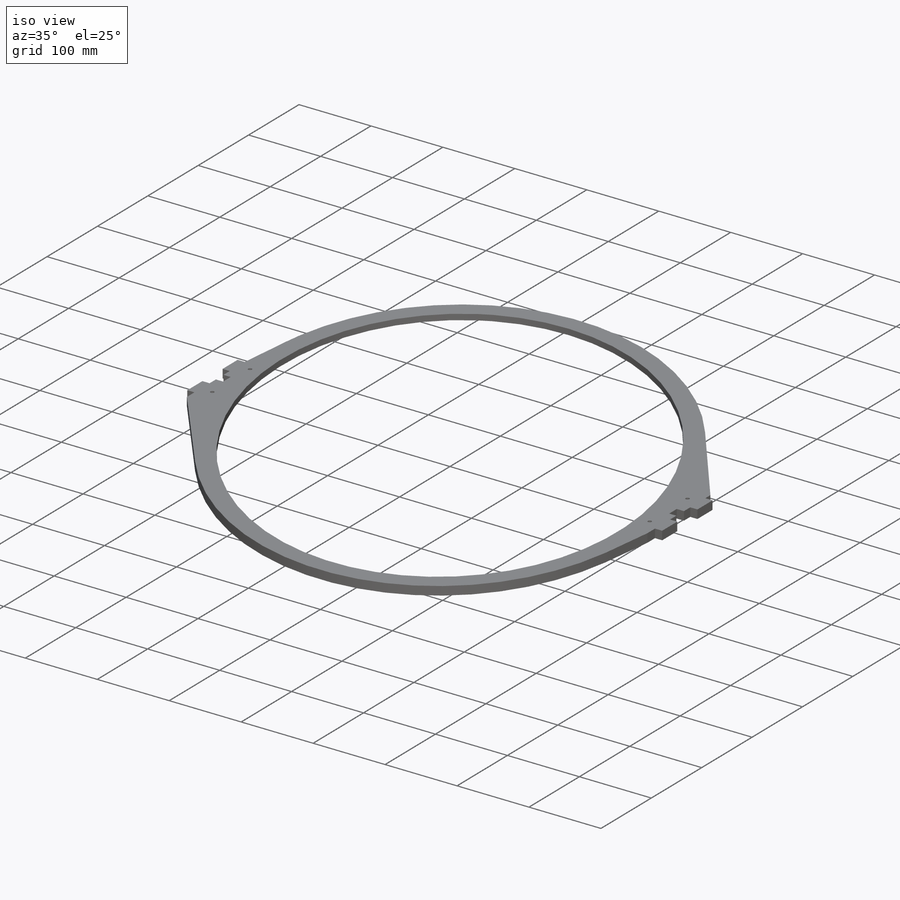
[diagram: iso view]
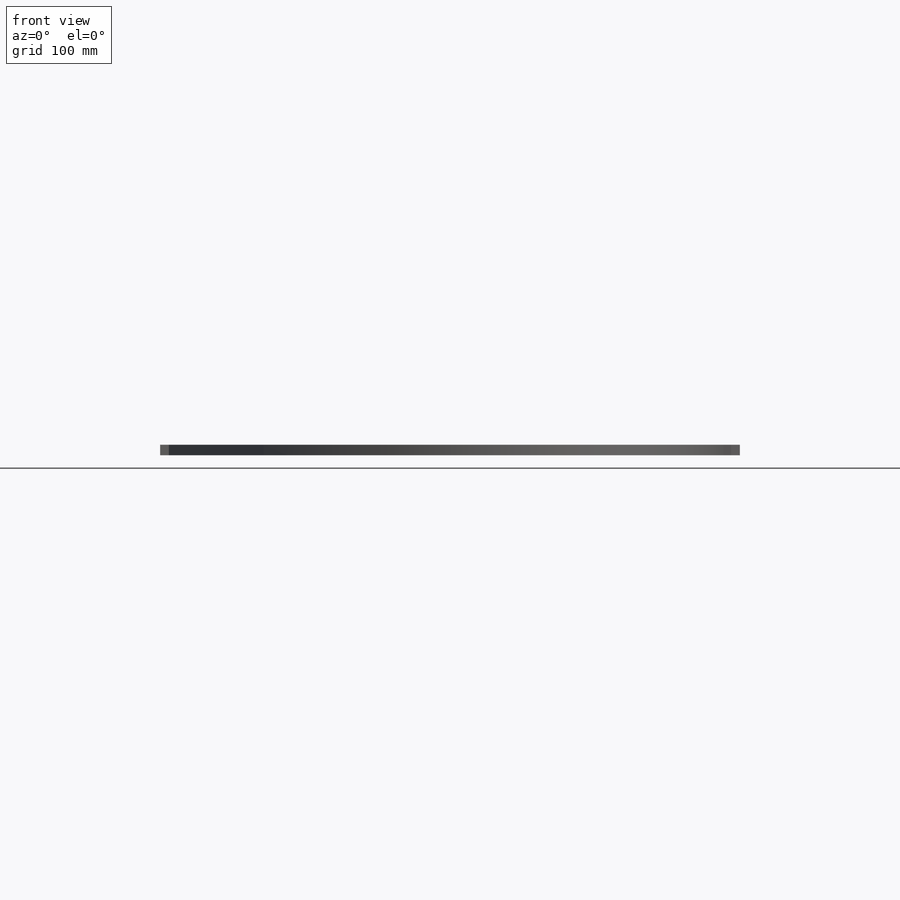
[diagram: front view]
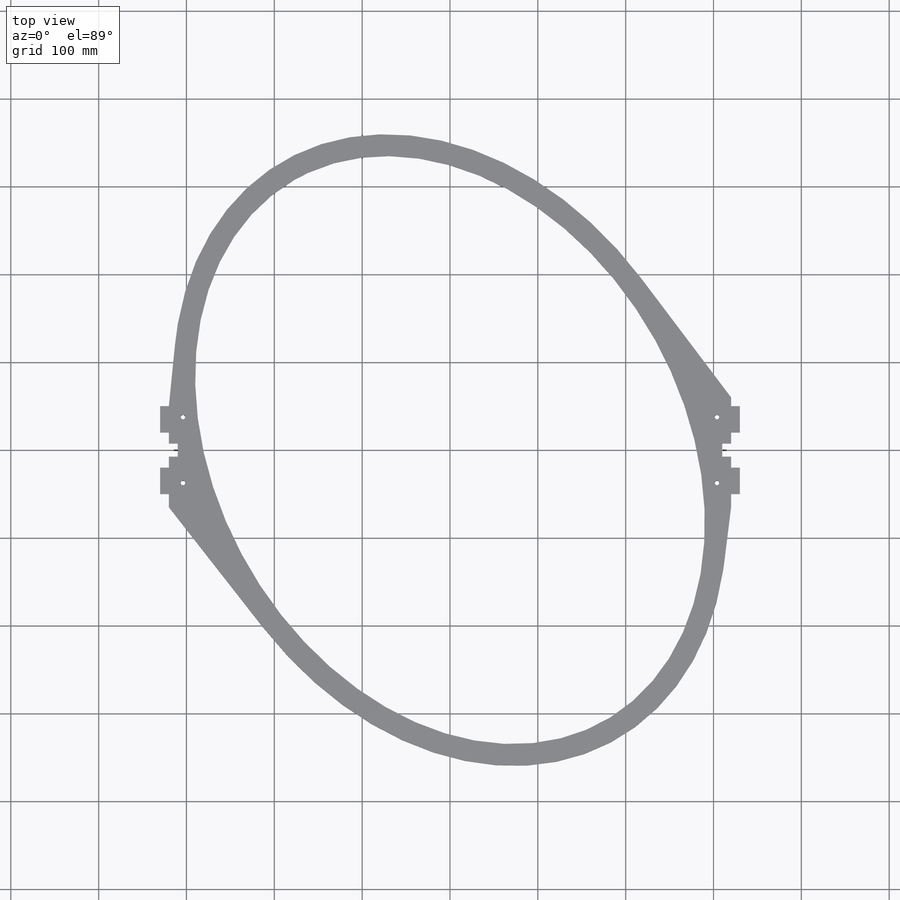
[diagram: top view]
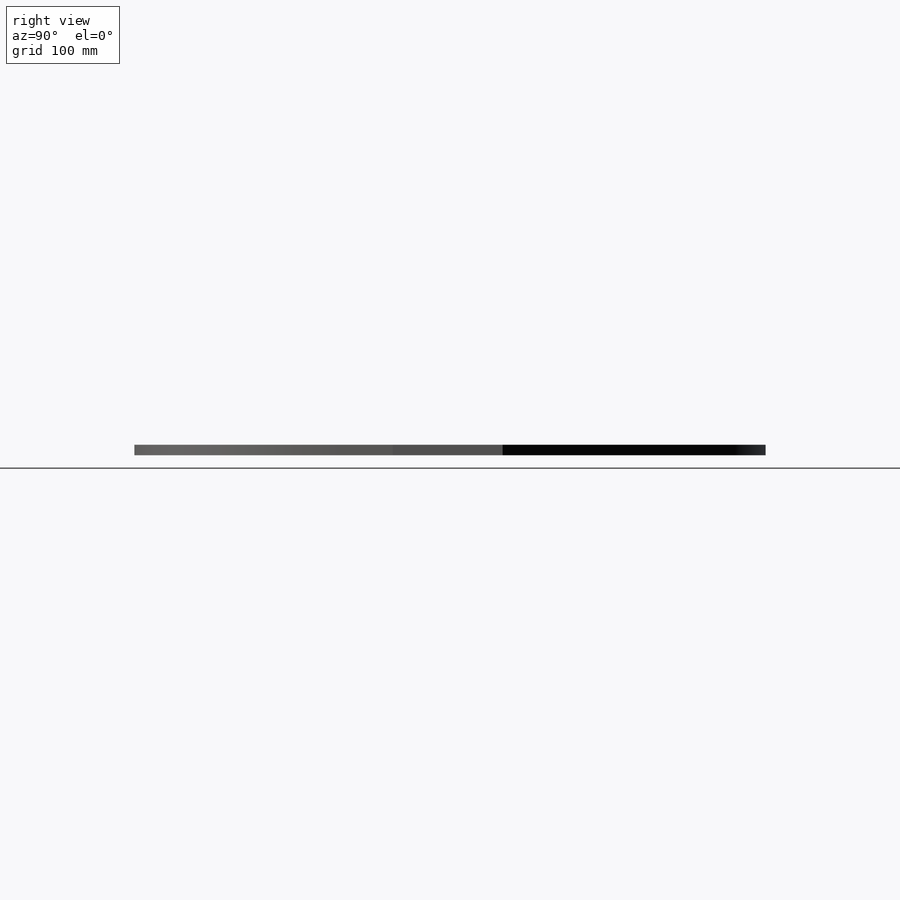
[diagram: right view]
SOLIDWORKS PART (.sldprt)
format: sldprt  version: not decoded by parser v0  size: 334,336 bytes
history: native  units: mm
features: sketch x7, cut_extrude x4, material x1, extrude x1, hole x1 (+12 scaffold rows collapsed)
feature tree (26):
  scaffold x12  (default folders/planes/origin — collapsed)
  material  "Material <not specified>"
  sketch  "Sketch1"  dims[c1.D1=530.0mm c1.D2=710.0mm c1.D3=580.0mm c1.D4=760.0mm c1.D5=20.0mm c1.D6=260.0mm c1.D7=60.0mm c2.D6=30.0mm c2.D8=10.0mm c2.D9=10.0mm c2.D10=~709.886148mm c3.D10=30.0deg c3.D11=710.0mm c3.D12=530.0mm c3.D13=760.0mm c3.D14=580.0mm c3.D2=10.0mm c3.D6=10.0mm c3.D8=10.0mm c3.D9=320.0mm c3.D15=30.0mm c3.D16=30.0mm c3.D17=20.0mm c3.D18=20.0mm c3.D19=15.0mm c3.D20=10.0mm c3.D21=1.0mm c4.D9=~78.52642deg]
  extrude  "Boss-Extrude1"  Depth=12mm
  sketch  "Sketch2"  dims[D1=15.0mm D2=10.0mm]
  cut_extrude  "Cut-Extrude1"  Depth=12mm
  hole  "Ø5.0 (5) Diameter Hole2"  Diameter=5mm Depth=25mm
  sketch  "Sketch5"
  sketch  "Sketch6"  dims[Hole Dia.=5.0mm Hole Depth=25.0mm Drill Angle=118.0deg]
  sketch  "Sketch9"  dims[D1=10.0mm D2=10.0mm]
  cut_extrude  "Cut-Extrude4"  Depth=4mm
  sketch  "Sketch7"  dims[c1.D2=500.0mm c1.D1=~222.639253mm c2.D1=25.0deg]
  cut_extrude  "Cut-Extrude2"  Depth=12mm
  sketch  "Sketch8"  dims[c1.D2=500.0mm c1.D1=~207.059999mm c2.D1=25.0deg]
  cut_extrude  "Cut-Extrude3"  Depth=12mm
decode coverage: 12 of 13 modeling features carry decoded parameters
note: ~ marks probable driven/reference dimensions
note: suppression state not decoded; provenance and decode notes live in map.json
